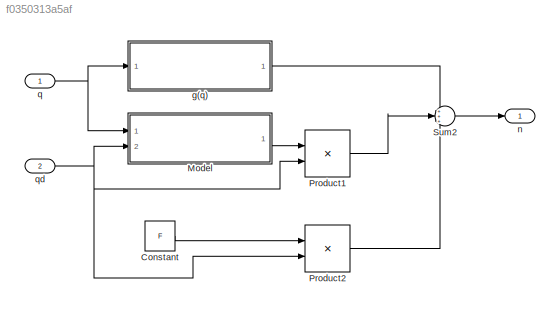
MODEL slx_f0350313a5af
KIND model
CONFIG AbsTol = auto
CONFIG EnableMultiTasking = off
CONFIG FixedStep = auto
CONFIG MaxStep = auto
CONFIG MinStep = auto
CONFIG RelTol = 1e-3
CONFIG SampleTimeConstraint = Unconstrained
CONFIG Solver = VariableStepAuto
CONFIG SolverName = VariableStepAuto
CONFIG StartTime = 0.0
CONFIG StopTime = 10.0
BLOCK [Constant] Constant
  Value = F
BLOCK [ModelReference] Model
  ModelNameDialog = C_sim_matrix.slx
  ModelReferenceVersion = 1.2
  Ports = [2, 1]
  Variant = off
BLOCK [Product] Product1
  InputSameDT = off
  Multiplication = Matrix(*)
  OutDataTypeStr = Inherit: Inherit via internal rule
  Ports = [2, 1]
  RndMeth = Floor
  SaturateOnIntegerOverflow = off
BLOCK [Product] Product2
  InputSameDT = off
  Multiplication = Matrix(*)
  OutDataTypeStr = Inherit: Inherit via internal rule
  Ports = [2, 1]
  RndMeth = Floor
  SaturateOnIntegerOverflow = off
BLOCK [Sum] Sum2
  IconShape = round
  InputSameDT = off
  Inputs = +++
  OutDataTypeStr = Inherit: Inherit via internal rule
  Ports = [3, 1]
  SaturateOnIntegerOverflow = off
BLOCK [ModelReference] g(q)
  ModelNameDialog = g_vector.slx
  ModelReferenceVersion = 1.8
  Ports = [1, 1]
  Variant = off
BLOCK [Outport] n
  IconDisplay = Port number
BLOCK [Inport] q
  IconDisplay = Port number
  PortDimensions = 2
BLOCK [Inport] qd
  IconDisplay = Port number
  Port = 2
  PortDimensions = 2
LINE Constant:1 -> Product2:1
LINE Model:1 -> Product1:1
LINE Product1:1 -> Sum2:2
LINE Product2:1 -> Sum2:3
LINE Sum2:1 -> n:1
LINE g(q):1 -> Sum2:1
NET q:1 -> Model:1, g(q):1
NET qd:1 -> Model:2, Product1:2, Product2:2
note: NET lines group one-source signal fan-out (src -> all destinations, sorted); 1:1 wires keep LINE
